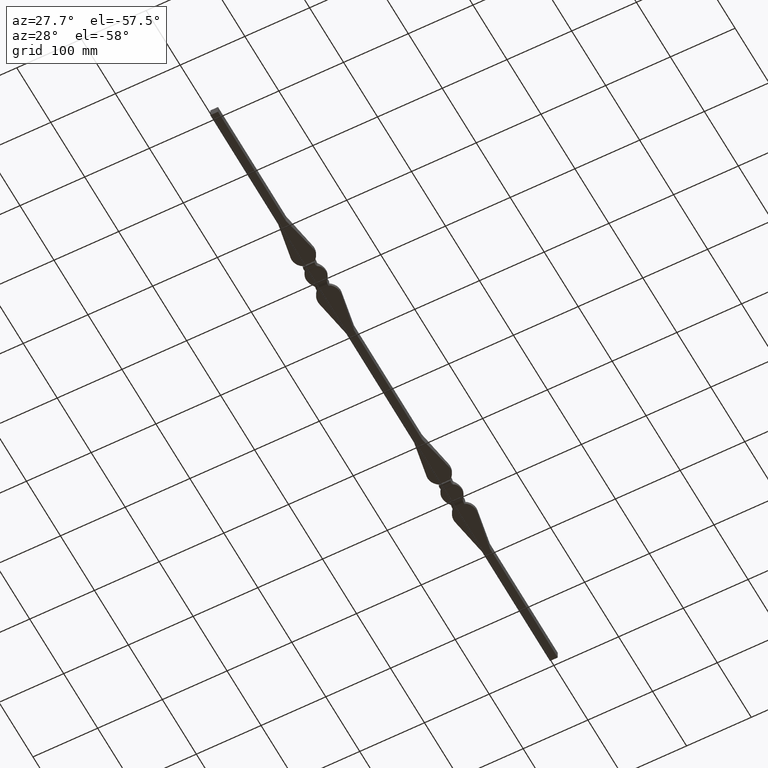
[diagram: clean part render]
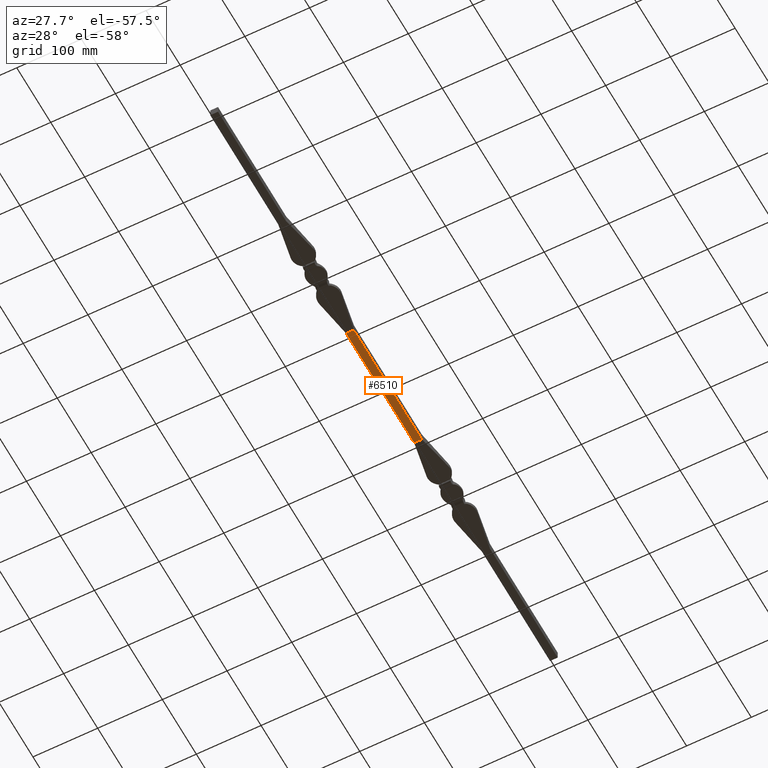
[diagram: same view with one face highlighted and labeled with its STEP entity id]
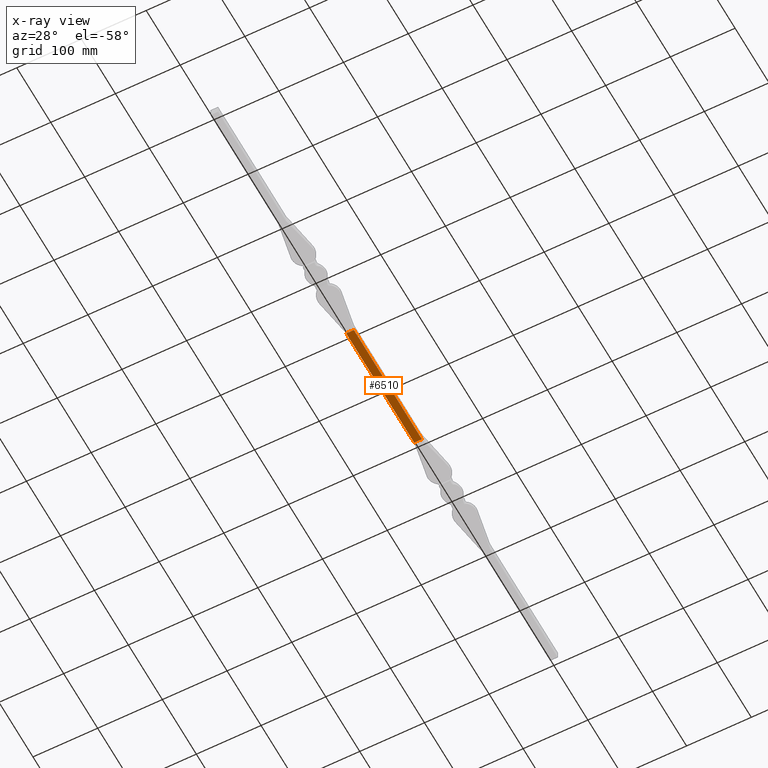
[diagram: x-ray of the same camera — body ghosted, the highlighted face saturated]
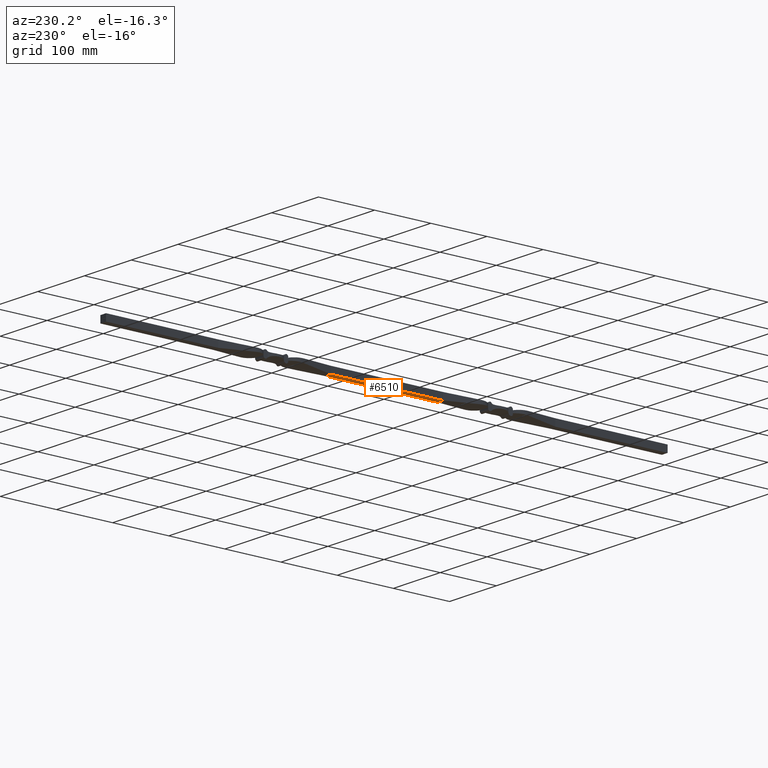
[diagram: same view with one face highlighted and labeled with its STEP entity id]
A machine part, auxiliary view. The second image highlights one B-rep face of the part: STEP entity #6510.
The next image is the same camera in x-ray: the body ghosted, the highlighted face saturated — about 0% of this face is hidden behind the body in this view.
A second angle (auxiliary view) of the same face is appended — the face is thin or edge-on in the first view.
In plain terms, the highlighted planar face has unit normal (0, 0, 1).
Its self-contained STEP definition (entity closure, byte-faithful):
#136 = DIRECTION ( 'NONE',  ( 1.000000000000000000, 0.000000000000000000, -0.000000000000000000 ) ) ;
#258 = CARTESIAN_POINT ( 'NONE',  ( 6.000000000000000000, -300.0000000000000000, -6.000000000000000000 ) ) ;
#877 = VERTEX_POINT ( 'NONE', #2002 ) ;
#1202 = DIRECTION ( 'NONE',  ( -1.000000000000000000, -4.625929269271485322E-15, 0.000000000000000000 ) ) ;
#1684 = LINE ( 'NONE', #10928, #11463 ) ;
#2002 = CARTESIAN_POINT ( 'NONE',  ( -6.000000000000000000, -300.0000000000000568, -6.000000000000000000 ) ) ;
#2009 = LINE ( 'NONE', #2213, #12458 ) ;
#2213 = CARTESIAN_POINT ( 'NONE',  ( 0.000000000000000000, -300.0000000000000568, -6.000000000000000000 ) ) ;
#2374 = AXIS2_PLACEMENT_3D ( 'NONE', #5437, #3291, #136 ) ;
#2649 = LINE ( 'NONE', #3647, #3117 ) ;
#2836 = EDGE_CURVE ( 'NONE', #10633, #877, #2009, .T. ) ;
#3117 = VECTOR ( 'NONE', #13074, 1000.000000000000000 ) ;
#3291 = DIRECTION ( 'NONE',  ( 0.000000000000000000, 0.000000000000000000, 1.000000000000000000 ) ) ;
#3360 = ORIENTED_EDGE ( 'NONE', *, *, #6670, .F. ) ;
#3568 = DIRECTION ( 'NONE',  ( 4.625929269271485322E-15, 1.000000000000000000, -0.000000000000000000 ) ) ;
#3644 = CARTESIAN_POINT ( 'NONE',  ( 6.000000000000000000, -100.0000000000000284, -6.000000000000000000 ) ) ;
#3647 = CARTESIAN_POINT ( 'NONE',  ( 0.000000000000000000, -100.0000000000000000, -6.000000000000000000 ) ) ;
#4022 = LINE ( 'NONE', #8046, #10736 ) ;
#4283 = EDGE_CURVE ( 'NONE', #877, #4369, #1684, .T. ) ;
#4369 = VERTEX_POINT ( 'NONE', #5162 ) ;
#4826 = EDGE_CURVE ( 'NONE', #11443, #4369, #2649, .T. ) ;
#5162 = CARTESIAN_POINT ( 'NONE',  ( -6.000000000000000000, -100.0000000000000000, -6.000000000000000000 ) ) ;
#5345 = PLANE ( 'NONE',  #2374 ) ;
#5437 = CARTESIAN_POINT ( 'NONE',  ( -6.000000000001467271, -416.9705627484771071, -6.000000000000000000 ) ) ;
#5902 = DIRECTION ( 'NONE',  ( 4.625929269271485322E-15, 1.000000000000000000, -0.000000000000000000 ) ) ;
#6510 = ADVANCED_FACE ( 'NONE', ( #12212 ), #5345, .F. ) ;
#6670 = EDGE_CURVE ( 'NONE', #10633, #11443, #4022, .T. ) ;
#8046 = CARTESIAN_POINT ( 'NONE',  ( 5.999999999998533617, -416.9705627484771640, -6.000000000000000000 ) ) ;
#8324 = ORIENTED_EDGE ( 'NONE', *, *, #2836, .T. ) ;
#10379 = ORIENTED_EDGE ( 'NONE', *, *, #4283, .T. ) ;
#10633 = VERTEX_POINT ( 'NONE', #258 ) ;
#10736 = VECTOR ( 'NONE', #5902, 1000.000000000000000 ) ;
#10928 = CARTESIAN_POINT ( 'NONE',  ( -6.000000000001467271, -416.9705627484771071, -6.000000000000000000 ) ) ;
#11134 = ORIENTED_EDGE ( 'NONE', *, *, #4826, .F. ) ;
#11443 = VERTEX_POINT ( 'NONE', #3644 ) ;
#11463 = VECTOR ( 'NONE', #3568, 1000.000000000000000 ) ;
#12212 = FACE_OUTER_BOUND ( 'NONE', #12995, .T. ) ;
#12458 = VECTOR ( 'NONE', #1202, 1000.000000000000000 ) ;
#12995 = EDGE_LOOP ( 'NONE', ( #3360, #8324, #10379, #11134 ) ) ;
#13074 = DIRECTION ( 'NONE',  ( -1.000000000000000000, 4.625929269271485322E-15, -0.000000000000000000 ) ) ;